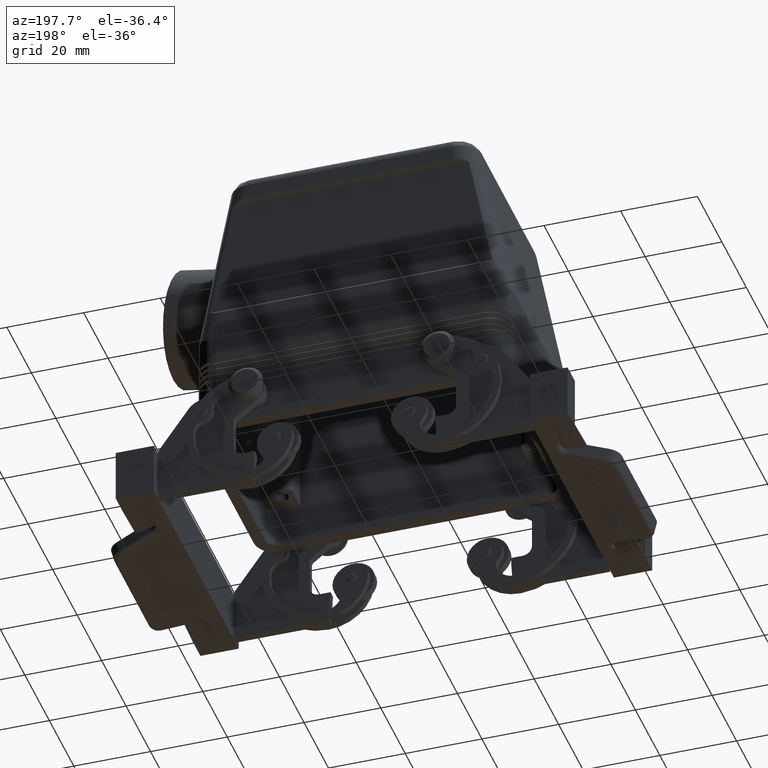
[diagram: clean part render]
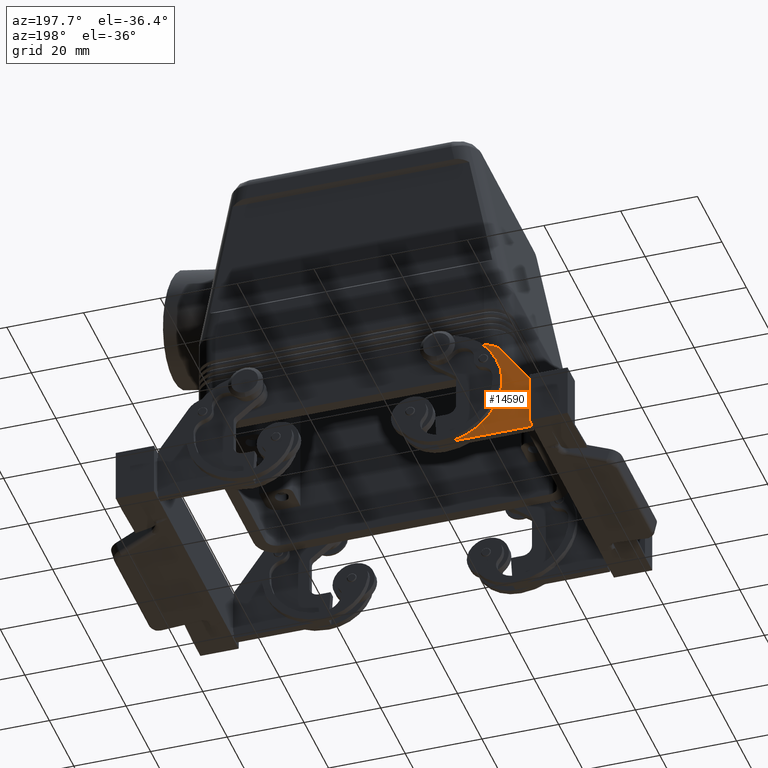
[diagram: same view with one face highlighted and labeled with its STEP entity id]
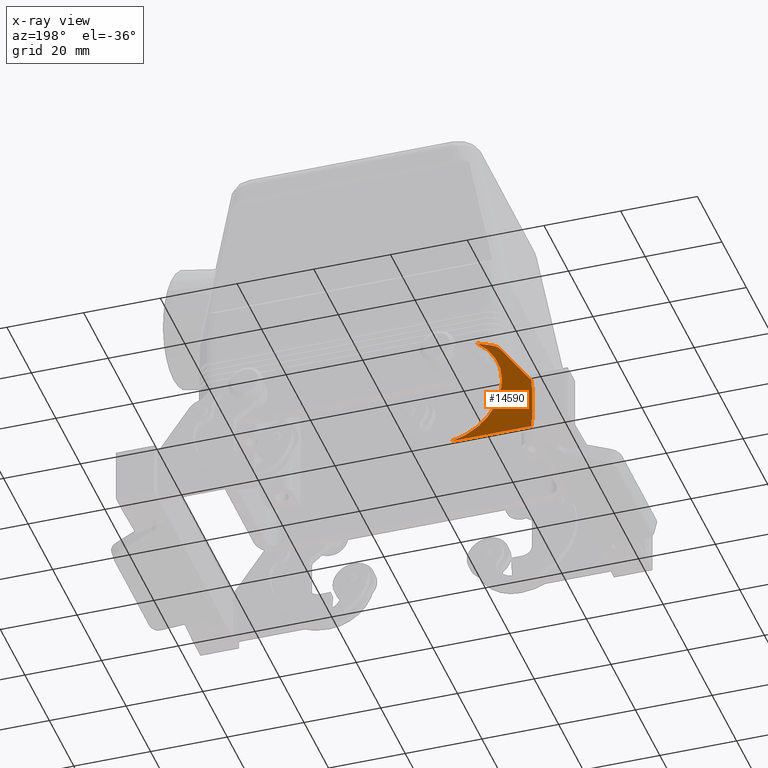
[diagram: x-ray of the same camera — body ghosted, the highlighted face saturated]
A machine part, auxiliary view. The second image highlights one B-rep face of the part: STEP entity #14590.
The next image is the same camera in x-ray: the body ghosted, the highlighted face saturated — about 0% of this face is hidden behind the body in this view.
In plain terms, the highlighted planar face has unit normal (0, -1, 0).
Its self-contained STEP definition (entity closure, byte-faithful):
#11787=CARTESIAN_POINT('',(-48.899999999999991,32.0,-20.000000000000014));
#11788=VERTEX_POINT('',#11787);
#11795=CARTESIAN_POINT('',(-48.699999999999989,32.0,-20.000000000000014));
#11796=VERTEX_POINT('',#11795);
#11797=CARTESIAN_POINT('',(-48.699999999999989,32.0,-20.000000000000014));
#11798=DIRECTION('',(-1.0,0.0,0.0));
#11799=VECTOR('',#11798,0.200000000000003);
#11800=LINE('',#11797,#11799);
#11801=EDGE_CURVE('',#11796,#11788,#11800,.T.);
#12061=CARTESIAN_POINT('',(-48.899999999999991,32.0,-9.999999999999986));
#12062=VERTEX_POINT('',#12061);
#12063=CARTESIAN_POINT('',(-48.899999999999991,32.0,-20.000000000000014));
#12064=DIRECTION('',(0.0,0.0,1.0));
#12065=VECTOR('',#12064,10.000000000000028);
#12066=LINE('',#12063,#12065);
#12067=EDGE_CURVE('',#11788,#12062,#12066,.T.);
#14517=CARTESIAN_POINT('',(-37.986053035139136,31.999999999999996,-9.017596516988988));
#14518=DIRECTION('',(0.0,-1.0,0.0));
#14519=DIRECTION('',(0.0,0.0,1.0));
#14520=AXIS2_PLACEMENT_3D('',#14517,#14518,#14519);
#14521=PLANE('',#14520);
#14522=ORIENTED_EDGE('',*,*,#12067,.T.);
#14523=CARTESIAN_POINT('',(-48.700000000000010,32.0,-9.999999999999986));
#14524=VERTEX_POINT('',#14523);
#14525=CARTESIAN_POINT('',(-48.899999999999991,32.0,-9.999999999999986));
#14526=DIRECTION('',(1.0,0.0,0.0));
#14527=VECTOR('',#14526,0.199999999999982);
#14528=LINE('',#14525,#14527);
#14529=EDGE_CURVE('',#12062,#14524,#14528,.T.);
#14530=ORIENTED_EDGE('',*,*,#14529,.T.);
#14531=CARTESIAN_POINT('',(-48.700000000000010,32.0,-7.999999999999981));
#14532=VERTEX_POINT('',#14531);
#14533=CARTESIAN_POINT('',(-48.700000000000010,32.0,-9.999999999999986));
#14534=DIRECTION('',(0.0,0.0,1.0));
#14535=VECTOR('',#14534,2.000000000000005);
#14536=LINE('',#14533,#14535);
#14537=EDGE_CURVE('',#14524,#14532,#14536,.T.);
#14538=ORIENTED_EDGE('',*,*,#14537,.T.);
#14539=CARTESIAN_POINT('',(-40.688253679388225,32.0,3.378572884776185));
#14540=VERTEX_POINT('',#14539);
#14541=CARTESIAN_POINT('',(-48.700000000000010,32.0,-7.999999999999981));
#14542=DIRECTION('',(0.575714576955236,0.0,0.817650735877644));
#14543=VECTOR('',#14542,13.916177636118327);
#14544=LINE('',#14541,#14543);
#14545=EDGE_CURVE('',#14532,#14540,#14544,.T.);
#14546=ORIENTED_EDGE('',*,*,#14545,.T.);
#14547=CARTESIAN_POINT('',(-38.383676791227174,32.0,5.171027414224581));
#14548=VERTEX_POINT('',#14547);
#14549=CARTESIAN_POINT('',(-36.600000000000001,32.0,0.500000000000003));
#14550=DIRECTION('',(0.0,1.000000000000000,0.0));
#14551=DIRECTION('',(0.356735358245434,0.0,-0.934205482844916));
#14552=AXIS2_PLACEMENT_3D('',#14549,#14550,#14551);
#14553=CIRCLE('',#14552,5.0);
#14554=EDGE_CURVE('',#14540,#14548,#14553,.T.);
#14555=ORIENTED_EDGE('',*,*,#14554,.T.);
#14556=CARTESIAN_POINT('',(-34.415515830944152,32.0,6.686307882747693));
#14557=VERTEX_POINT('',#14556);
#14558=CARTESIAN_POINT('',(-38.383676791227174,32.0,5.171027414224581));
#14559=DIRECTION('',(0.934205482844916,0.0,0.356735358245433));
#14560=VECTOR('',#14559,4.247631846688446);
#14561=LINE('',#14558,#14560);
#14562=EDGE_CURVE('',#14548,#14557,#14561,.T.);
#14563=ORIENTED_EDGE('',*,*,#14562,.T.);
#14564=CARTESIAN_POINT('',(-27.817356917396129,32.0,-21.999999999999996));
#14565=VERTEX_POINT('',#14564);
#14566=CARTESIAN_POINT('',(-25.0,32.0,-6.249999999999996));
#14567=DIRECTION('',(0.0,-1.0,0.0));
#14568=DIRECTION('',(0.0,0.0,1.0));
#14569=AXIS2_PLACEMENT_3D('',#14566,#14567,#14568);
#14570=CIRCLE('',#14569,15.999999999999998);
#14571=EDGE_CURVE('',#14557,#14565,#14570,.T.);
#14572=ORIENTED_EDGE('',*,*,#14571,.T.);
#14573=CARTESIAN_POINT('',(-48.700000000000010,32.0,-22.000000000000014));
#14574=VERTEX_POINT('',#14573);
#14575=CARTESIAN_POINT('',(-27.817356917396129,32.0,-21.999999999999996));
#14576=DIRECTION('',(-1.0,0.0,0.0));
#14577=VECTOR('',#14576,20.882643082603881);
#14578=LINE('',#14575,#14577);
#14579=EDGE_CURVE('',#14565,#14574,#14578,.T.);
#14580=ORIENTED_EDGE('',*,*,#14579,.T.);
#14581=CARTESIAN_POINT('',(-48.700000000000010,32.0,-22.000000000000014));
#14582=DIRECTION('',(0.0,0.0,1.0));
#14583=VECTOR('',#14582,2.0);
#14584=LINE('',#14581,#14583);
#14585=EDGE_CURVE('',#14574,#11796,#14584,.T.);
#14586=ORIENTED_EDGE('',*,*,#14585,.T.);
#14587=ORIENTED_EDGE('',*,*,#11801,.T.);
#14588=EDGE_LOOP('',(#14522,#14530,#14538,#14546,#14555,#14563,#14572,#14580,#14586,#14587));
#14589=FACE_OUTER_BOUND('',#14588,.T.);
#14590=ADVANCED_FACE('',(#14589),#14521,.F.);